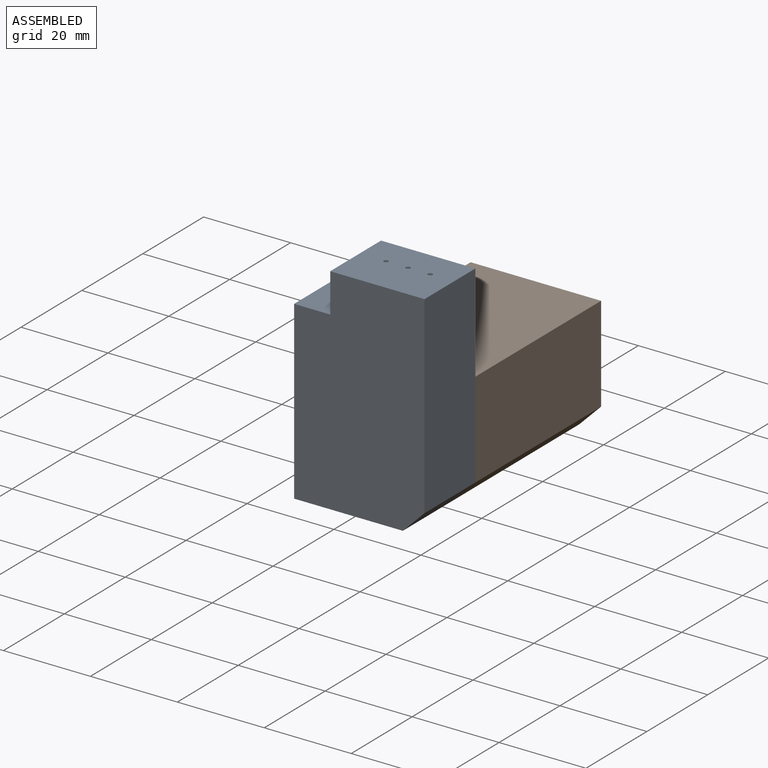
[diagram: assembled view]
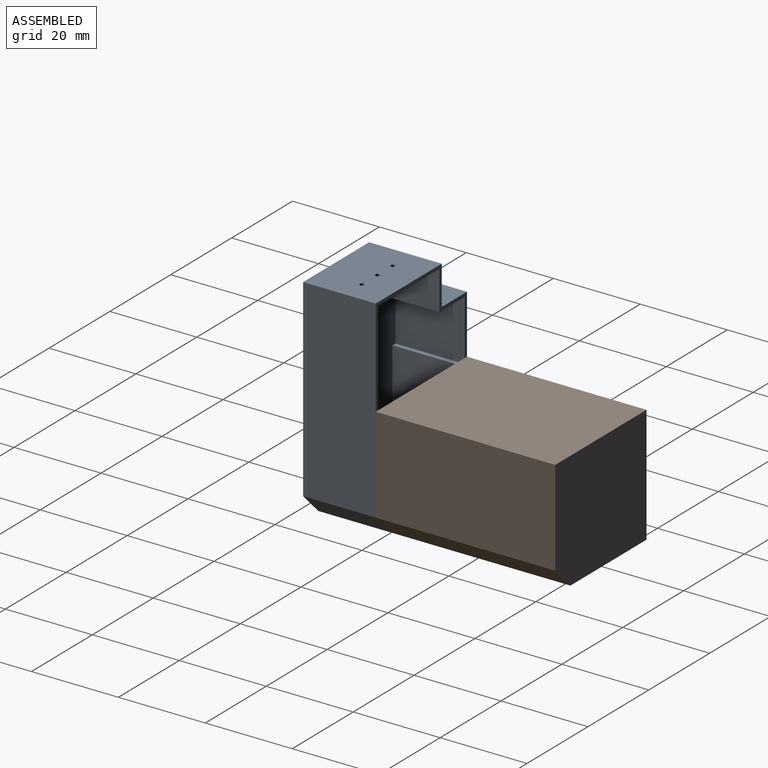
[diagram: assembled view, second angle]
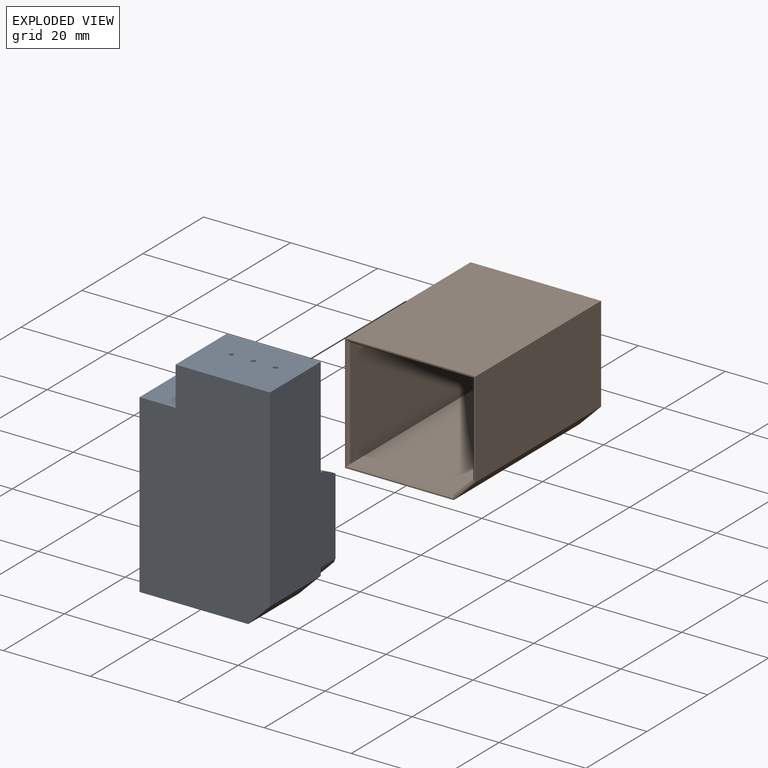
[diagram: exploded view]
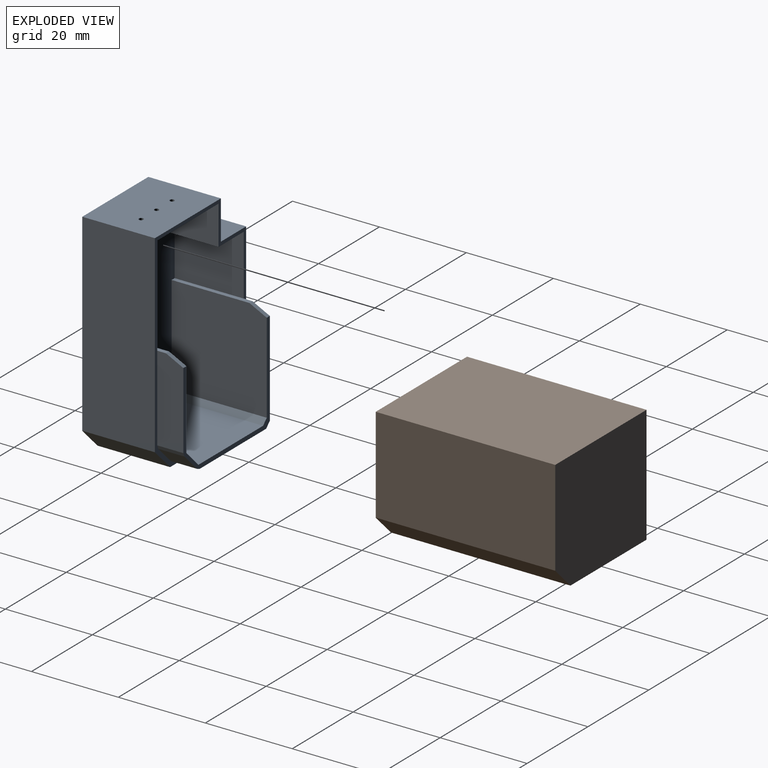
[diagram: exploded view, second angle]
ASSEMBLY  parts=2 mates=3
PART A: 35 faces, bbox 30x22.7x49.5 mm
  f0: plane 21.9x21.25mm, normal (0,0,1), area 465.3mm2, adj f3,f23,f28,f29
  f1: plane 21.9x20.05mm, normal (-1,0,0), area 435.2mm2, adj f3,f22,f23,f28,f34
  f2: plane 22.9x15.9mm, normal (-1,0,0), area 364.1mm2, adj f3,f5,f14,f22
  f3: plane 46.9x28.4mm, normal (0,1,0), area 1200.7mm2, adj f0,f1,f2,f4,f14,f15,f16,f17
  f4: plane 22.79x21.9mm, normal (1,0,0), area 495.2mm2, adj f3,f21,f28,f29,f33
  f5: plane 49.5x30mm, normal (0,1,0), area 124.6mm2, adj f2,f6,f7,f8,f9,f10,f11,f12
  f6: plane 25x16.7mm, normal (0,0,-1), area 417.5mm2, adj f5,f7,f12,f13
  f7: plane 16.7x5mm, normal (0.71,0,-0.71), area 118.1mm2, adj f5,f6,f8,f13
  f8: plane 44.5x16.7mm, normal (1,0,0), area 743.1mm2, adj f5,f7,f9,f13
  f9: plane 21.7x16.7mm, normal (0,0,1), area 360mm2, adj f5,f8,f10,f13,f18,f19,f20
  f10: plane 16.7x9mm, normal (-1,0,0), area 150.3mm2, adj f5,f9,f11,f13
  f11: plane 16.7x8.3mm, normal (0,0,1), area 138.6mm2, adj f5,f10,f12,f13
  f12: plane 40.5x16.7mm, normal (-1,0,0), area 676.4mm2, adj f5,f6,f11,f13
  f13: plane 49.5x30mm, normal (0,-1,0), area 1397.8mm2, adj f6,f7,f8,f9,f10,f11,f12
  f14: plane 20.1x15.9mm, normal (0,0,-1), area 317.2mm2, adj f2,f3,f5,f15,f18,f19,f20
  f15: plane 15.9x9mm, normal (1,0,0), area 143.1mm2, adj f3,f5,f14,f16
  f16: plane 15.9x8.3mm, normal (0,0,-1), area 132mm2, adj f3,f5,f15,f17
  f17: plane 15.9x13.9mm, normal (1,0,0), area 221mm2, adj f3,f5,f16,f21
  f18: cylinder r=0.5mm len=1mm, axis (0,0,1), area 2.5mm2, adj f9,f14
  f19: cylinder r=0.5mm len=1mm, axis (0,0,1), area 2.5mm2, adj f9,f14
  f20: cylinder r=0.5mm len=1mm, axis (0,0,1), area 2.5mm2, adj f9,f14
  f21: plane 17.9x1mm, normal (0,0,1), area 17.9mm2, adj f3,f4,f17,f27,f33
  f22: plane 17.9x1mm, normal (0,0,1), area 17.9mm2, adj f1,f2,f3,f24,f34
  f23: plane 21.9x3.95mm, normal (-0.71,0,0.71), area 122.2mm2, adj f0,f1,f3,f28
  f24: plane 19.69x6mm, normal (1,0,0), area 114.1mm2, adj f5,f22,f28,f32,f34
  f25: plane 6x4.11mm, normal (0.71,0,-0.71), area 34.8mm2, adj f5,f28,f31,f32
  f26: plane 21.88x6mm, normal (0,0,-1), area 131.3mm2, adj f5,f28,f30,f31
  f27: plane 23.79x6mm, normal (-1,0,0), area 138.8mm2, adj f5,f21,f28,f30,f33
  f28: plane 28.4x23mm, normal (0,1,0), area 68.4mm2, adj f0,f1,f4,f23,f24,f25,f26,f27
  f29: plane 21.9x1.21mm, normal (0.71,0,0.71), area 37.4mm2, adj f0,f3,f4,f28
  f30: plane 6x1.21mm, normal (-0.71,0,-0.71), area 10.2mm2, adj f5,f26,f27,f28
  f31: plane 6x0.85mm, normal (0.38,0,-0.92), area 5.5mm2, adj f5,f25,f26,f28
  f32: plane 6x0.85mm, normal (0.92,0,-0.38), area 5.5mm2, adj f5,f24,f25,f28
  f33: plane 4x2mm, normal (0,0.45,0.89), area 4.5mm2, adj f4,f21,f27,f28
  f34: plane 4x2mm, normal (0,0.45,0.89), area 4.5mm2, adj f1,f22,f24,f28
PART B: 18 faces, bbox 30x41.3x27 mm
  f0: plane 30x27mm, normal (0,-1,0), area 33mm2, adj f1,f2,f3,f4,f5,f13,f14,f15
  f1: plane 41.3x25mm, normal (0,0,-1), area 1032.5mm2, adj f0,f2,f5,f6
  f2: plane 41.3x5mm, normal (0.71,0,-0.71), area 292mm2, adj f0,f1,f3,f6
  f3: plane 41.3x22mm, normal (1,0,0), area 908.6mm2, adj f0,f2,f4,f6
  f4: plane 41.3x30mm, normal (0,0,1), area 1239mm2, adj f0,f3,f5,f6
  f5: plane 41.3x27mm, normal (-1,0,0), area 1115.1mm2, adj f0,f1,f4,f6
  f6: plane 30x27mm, normal (0,1,0), area 797.5mm2, adj f1,f2,f3,f4,f5
  f7: plane 40x23.87mm, normal (0,0,1), area 954.7mm2, adj f8,f11,f12,f15
  f8: plane 40x4.53mm, normal (-0.71,0,0.71), area 256.3mm2, adj f7,f9,f12,f13
  f9: plane 40x20.87mm, normal (-1,0,0), area 834.7mm2, adj f8,f10,f12,f14
  f10: plane 40x28.4mm, normal (0,0,-1), area 1136mm2, adj f9,f11,f12,f16
  f11: plane 40x25.4mm, normal (1,0,0), area 1016mm2, adj f7,f10,f12,f17
  f12: plane 28.4x25.4mm, normal (0,-1,0), area 711.1mm2, adj f7,f8,f9,f10,f11
  f13: plane 5.03x5.03mm, normal (-0.5,-0.71,0.5), area 4.7mm2, adj f0,f8,f14,f15
  f14: plane 21.58x0.5mm, normal (-0.71,-0.71,0), area 15mm2, adj f0,f9,f13,f16
  f15: plane 24.58x0.5mm, normal (0,-0.71,0.71), area 17.1mm2, adj f0,f7,f13,f17
  f16: plane 29.4x0.5mm, normal (0,-0.71,-0.71), area 20.4mm2, adj f0,f10,f14,f17
  f17: plane 26.4x0.5mm, normal (0.71,-0.71,0), area 18.3mm2, adj f0,f11,f15,f16
PLACE A t=(-12.48,-58.55,-7.19)mm
PLACE B t=(-12.48,-58.55,-7.19)mm
MATE planar B.f0 <-> A.f5  axis (0,-1,0) through (2.09,-58.55,6.7)mm
MATE planar B.f1 <-> A.f6  axis (0,0,-1) through (0.02,-37.9,-7.19)mm
MATE planar B.f3 <-> A.f8  axis (1,0,0) through (17.52,-37.9,8.81)mm
